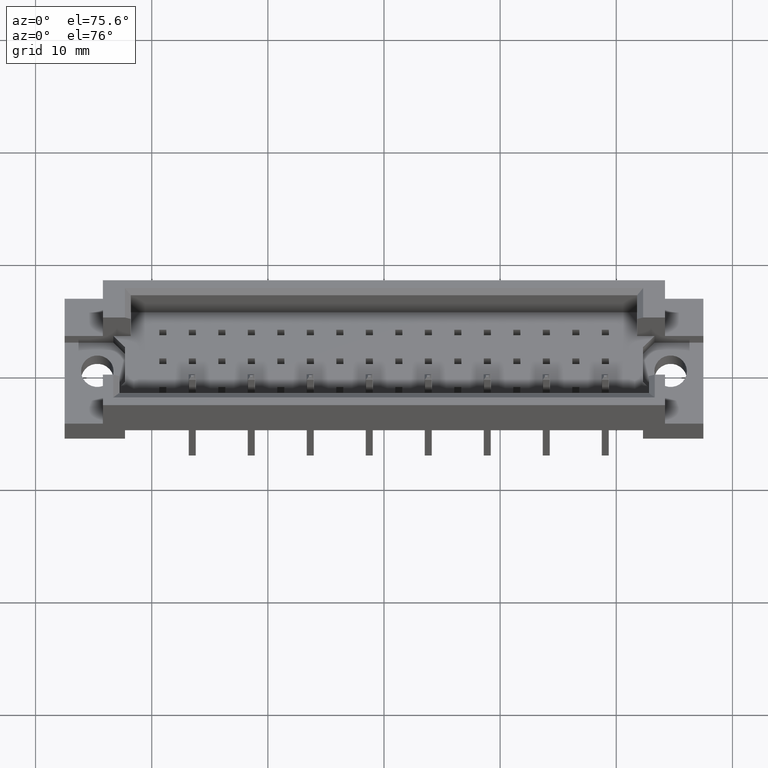
[diagram: clean part render]
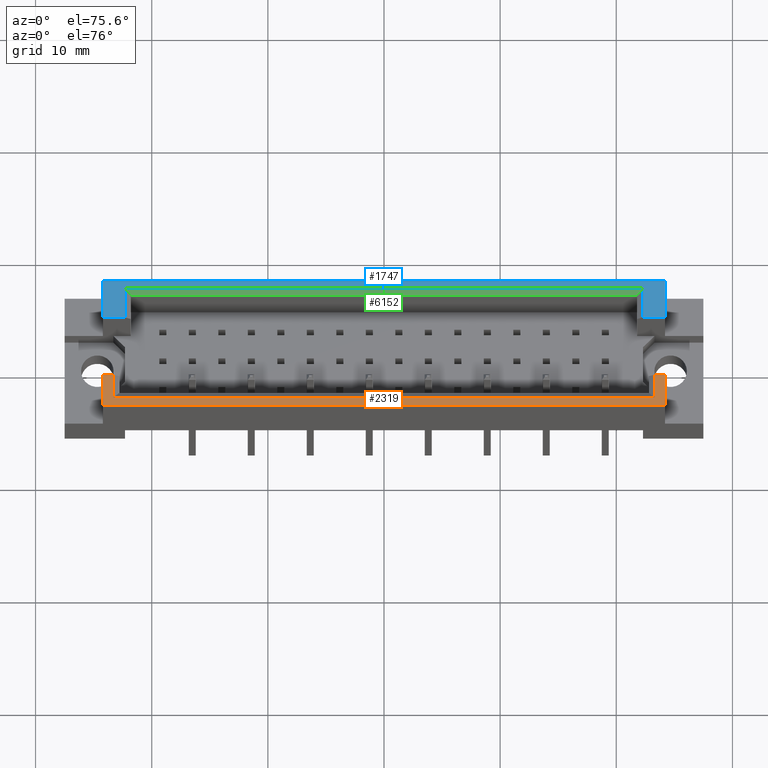
[diagram: same view with three faces highlighted in distinct colors, each labeled with its STEP entity id]
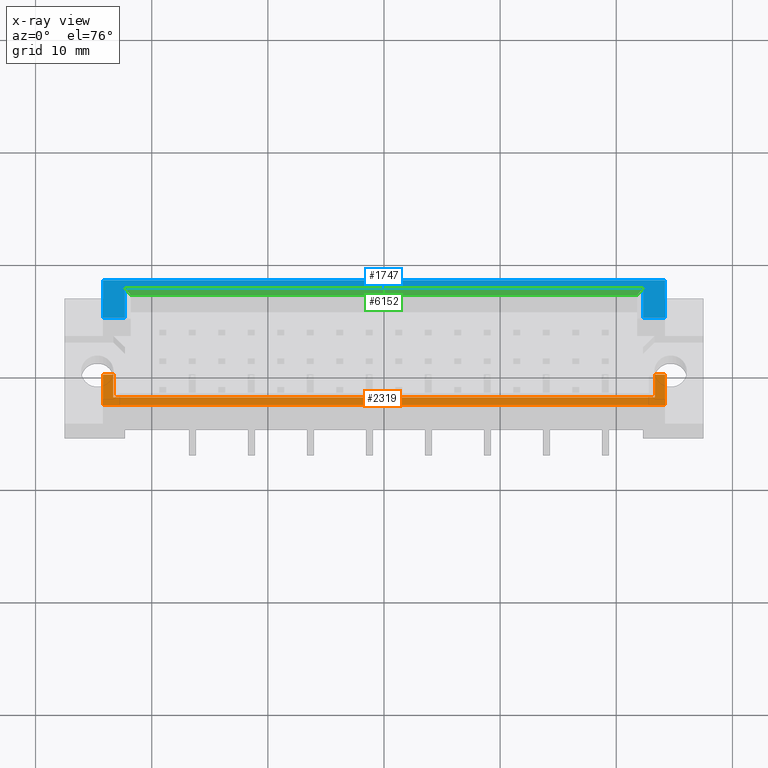
[diagram: x-ray of the same camera — body ghosted, the three highlighted faces saturated]
A machine part, auxiliary view with three faces highlighted in distinct colors.
The next image is the same camera in x-ray (body ghosted, the three faces saturated) — at least one of them is partly hidden behind the body in this view.
Their STEP definitions:

[orange] entity #2319 — the highlighted planar face has unit normal (-0, 0, -1).
#160 = ORIENTED_EDGE ( 'NONE', *, *, #1022, .T. ) ;
#699 = LINE ( 'NONE', #1401, #6048 ) ;
#718 = DIRECTION ( 'NONE',  ( 0.0000000000000000000, 1.000000000000000000, 0.0000000000000000000 ) ) ;
#722 = EDGE_CURVE ( 'NONE', #6373, #8333, #1933, .T. ) ;
#878 = EDGE_CURVE ( 'NONE', #7812, #8339, #2066, .T. ) ;
#960 = LINE ( 'NONE', #5345, #5427 ) ;
#1022 = EDGE_CURVE ( 'NONE', #7812, #2282, #2492, .T. ) ;
#1046 = ORIENTED_EDGE ( 'NONE', *, *, #722, .T. ) ;
#1201 = VERTEX_POINT ( 'NONE', #3562 ) ;
#1330 = CARTESIAN_POINT ( 'NONE',  ( -22.79999999999999716, 0.6919999999999928431, 11.59999999999999964 ) ) ;
#1371 = DIRECTION ( 'NONE',  ( -1.000000000000000000, 0.0000000000000000000, 1.261617073437677999E-16 ) ) ;
#1401 = CARTESIAN_POINT ( 'NONE',  ( 23.30799999999999628, 1.199999999999994404, 11.59999999999999254 ) ) ;
#1769 = CARTESIAN_POINT ( 'NONE',  ( 23.30799999999999628, 0.6919999999999928431, 11.59999999999999254 ) ) ;
#1933 = LINE ( 'NONE', #3136, #5678 ) ;
#2066 = LINE ( 'NONE', #7775, #8694 ) ;
#2282 = VERTEX_POINT ( 'NONE', #3869 ) ;
#2319 = ADVANCED_FACE ( 'NONE', ( #3828 ), #5364, .F. ) ;
#2492 = LINE ( 'NONE', #6024, #4634 ) ;
#2504 = LINE ( 'NONE', #7425, #4395 ) ;
#2820 = CARTESIAN_POINT ( 'NONE',  ( -23.30799999999999983, 0.6919999999999928431, 11.59999999999999964 ) ) ;
#2953 = DIRECTION ( 'NONE',  ( 0.0000000000000000000, -1.000000000000000000, 0.0000000000000000000 ) ) ;
#3136 = CARTESIAN_POINT ( 'NONE',  ( 22.79999999999999716, 2.709999999999995524, 11.59999999999999609 ) ) ;
#3254 = VERTEX_POINT ( 'NONE', #2820 ) ;
#3307 = CARTESIAN_POINT ( 'NONE',  ( -24.19999999999999929, 0.0000000000000000000, 11.59999999999999609 ) ) ;
#3562 = CARTESIAN_POINT ( 'NONE',  ( -23.30799999999999983, 2.709999999999995524, 11.59999999999999609 ) ) ;
#3828 = FACE_OUTER_BOUND ( 'NONE', #4004, .T. ) ;
#3854 = ORIENTED_EDGE ( 'NONE', *, *, #5242, .T. ) ;
#3869 = CARTESIAN_POINT ( 'NONE',  ( 24.19999999999999929, 0.0000000000000000000, 11.59999999999999609 ) ) ;
#3914 = DIRECTION ( 'NONE',  ( -1.000000000000000000, 0.0000000000000000000, 1.261617073437677999E-16 ) ) ;
#4004 = EDGE_LOOP ( 'NONE', ( #8440, #3854, #7537, #7295, #160, #4507, #1046, #4942 ) ) ;
#4395 = VECTOR ( 'NONE', #7600, 1000.000000000000000 ) ;
#4474 = EDGE_CURVE ( 'NONE', #9064, #3254, #9093, .T. ) ;
#4507 = ORIENTED_EDGE ( 'NONE', *, *, #7609, .F. ) ;
#4542 = VECTOR ( 'NONE', #1371, 1000.000000000000000 ) ;
#4634 = VECTOR ( 'NONE', #9026, 1000.000000000000000 ) ;
#4942 = ORIENTED_EDGE ( 'NONE', *, *, #6696, .T. ) ;
#5042 = CARTESIAN_POINT ( 'NONE',  ( 24.19999999999999929, 0.0000000000000000000, 11.59999999999999609 ) ) ;
#5242 = EDGE_CURVE ( 'NONE', #3254, #1201, #960, .T. ) ;
#5293 = VECTOR ( 'NONE', #7925, 1000.000000000000000 ) ;
#5345 = CARTESIAN_POINT ( 'NONE',  ( -23.30799999999999983, 2.709999999999995524, 11.59999999999999964 ) ) ;
#5364 = PLANE ( 'NONE',  #8443 ) ;
#5396 = CARTESIAN_POINT ( 'NONE',  ( -24.19999999999999929, 2.709999999999995524, 11.59999999999999609 ) ) ;
#5427 = VECTOR ( 'NONE', #6695, 1000.000000000000000 ) ;
#5593 = CARTESIAN_POINT ( 'NONE',  ( 23.30799999999999628, 2.709999999999995524, 11.59999999999999609 ) ) ;
#5678 = VECTOR ( 'NONE', #5911, 1000.000000000000000 ) ;
#5911 = DIRECTION ( 'NONE',  ( -1.000000000000000000, -0.0000000000000000000, -0.0000000000000000000 ) ) ;
#6024 = CARTESIAN_POINT ( 'NONE',  ( -27.49999999999999645, 0.0000000000000000000, 11.59999999999999964 ) ) ;
#6048 = VECTOR ( 'NONE', #2953, 1000.000000000000000 ) ;
#6373 = VERTEX_POINT ( 'NONE', #6594 ) ;
#6594 = CARTESIAN_POINT ( 'NONE',  ( 24.19999999999999929, 2.709999999999995524, 11.59999999999999609 ) ) ;
#6695 = DIRECTION ( 'NONE',  ( 0.0000000000000000000, 1.000000000000000000, 0.0000000000000000000 ) ) ;
#6696 = EDGE_CURVE ( 'NONE', #8333, #9064, #699, .T. ) ;
#6715 = CARTESIAN_POINT ( 'NONE',  ( -27.49999999999999645, 11.09999999999999964, 11.59999999999999964 ) ) ;
#7295 = ORIENTED_EDGE ( 'NONE', *, *, #878, .F. ) ;
#7425 = CARTESIAN_POINT ( 'NONE',  ( -24.19999999999999929, 2.709999999999995524, 11.59999999999999609 ) ) ;
#7537 = ORIENTED_EDGE ( 'NONE', *, *, #7660, .T. ) ;
#7600 = DIRECTION ( 'NONE',  ( -1.000000000000000000, -0.0000000000000000000, -0.0000000000000000000 ) ) ;
#7609 = EDGE_CURVE ( 'NONE', #6373, #2282, #8635, .T. ) ;
#7660 = EDGE_CURVE ( 'NONE', #1201, #8339, #2504, .T. ) ;
#7775 = CARTESIAN_POINT ( 'NONE',  ( -24.19999999999999929, 0.0000000000000000000, 11.59999999999999609 ) ) ;
#7812 = VERTEX_POINT ( 'NONE', #3307 ) ;
#7925 = DIRECTION ( 'NONE',  ( -0.0000000000000000000, -1.000000000000000000, -0.0000000000000000000 ) ) ;
#8253 = DIRECTION ( 'NONE',  ( -1.261617073437677999E-16, 0.0000000000000000000, -1.000000000000000000 ) ) ;
#8333 = VERTEX_POINT ( 'NONE', #5593 ) ;
#8339 = VERTEX_POINT ( 'NONE', #5396 ) ;
#8440 = ORIENTED_EDGE ( 'NONE', *, *, #4474, .T. ) ;
#8443 = AXIS2_PLACEMENT_3D ( 'NONE', #6715, #8253, #3914 ) ;
#8635 = LINE ( 'NONE', #5042, #5293 ) ;
#8694 = VECTOR ( 'NONE', #718, 1000.000000000000000 ) ;
#9026 = DIRECTION ( 'NONE',  ( 1.000000000000000000, 0.0000000000000000000, -1.261617073437677999E-16 ) ) ;
#9064 = VERTEX_POINT ( 'NONE', #1769 ) ;
#9093 = LINE ( 'NONE', #1330, #4542 ) ;

[blue] entity #1747 — the highlighted planar face has unit normal (-0, 0, -1).
#299 = LINE ( 'NONE', #4473, #5766 ) ;
#638 = VECTOR ( 'NONE', #1280, 1000.000000000000000 ) ;
#747 = CARTESIAN_POINT ( 'NONE',  ( -22.30800000000000338, 7.789999999999995595, 11.59999999999999609 ) ) ;
#900 = CARTESIAN_POINT ( 'NONE',  ( 24.19999999999999929, 7.789999999999995595, 11.59999999999999609 ) ) ;
#953 = LINE ( 'NONE', #900, #3573 ) ;
#967 = AXIS2_PLACEMENT_3D ( 'NONE', #3656, #6577, #2946 ) ;
#997 = CARTESIAN_POINT ( 'NONE',  ( 22.30800000000000693, 10.40800000000000303, 11.59999999999999254 ) ) ;
#1028 = ORIENTED_EDGE ( 'NONE', *, *, #1907, .T. ) ;
#1029 = CARTESIAN_POINT ( 'NONE',  ( 21.79999999999999716, 10.40800000000000303, 11.59999999999999254 ) ) ;
#1059 = EDGE_CURVE ( 'NONE', #6664, #4493, #4035, .T. ) ;
#1133 = EDGE_LOOP ( 'NONE', ( #1028, #2922, #5361, #6099, #4154, #2263, #3383, #1294 ) ) ;
#1229 = LINE ( 'NONE', #5592, #638 ) ;
#1280 = DIRECTION ( 'NONE',  ( 0.0000000000000000000, -1.000000000000000000, 0.0000000000000000000 ) ) ;
#1294 = ORIENTED_EDGE ( 'NONE', *, *, #1059, .T. ) ;
#1297 = VERTEX_POINT ( 'NONE', #3058 ) ;
#1315 = EDGE_CURVE ( 'NONE', #6639, #4320, #953, .T. ) ;
#1747 = ADVANCED_FACE ( 'NONE', ( #3744 ), #3598, .F. ) ;
#1907 = EDGE_CURVE ( 'NONE', #4493, #6822, #8130, .T. ) ;
#2253 = VERTEX_POINT ( 'NONE', #2374 ) ;
#2263 = ORIENTED_EDGE ( 'NONE', *, *, #7920, .F. ) ;
#2374 = CARTESIAN_POINT ( 'NONE',  ( -24.19999999999999929, 11.09999999999999787, 11.59999999999999609 ) ) ;
#2533 = DIRECTION ( 'NONE',  ( 1.000000000000000000, 0.0000000000000000000, 0.0000000000000000000 ) ) ;
#2581 = DIRECTION ( 'NONE',  ( 0.0000000000000000000, 1.000000000000000000, 0.0000000000000000000 ) ) ;
#2587 = EDGE_CURVE ( 'NONE', #1297, #4320, #3488, .T. ) ;
#2922 = ORIENTED_EDGE ( 'NONE', *, *, #4888, .T. ) ;
#2946 = DIRECTION ( 'NONE',  ( -1.000000000000000000, 0.0000000000000000000, 1.261617073437677999E-16 ) ) ;
#3058 = CARTESIAN_POINT ( 'NONE',  ( 24.19999999999999929, 11.09999999999999787, 11.59999999999999609 ) ) ;
#3226 = DIRECTION ( 'NONE',  ( 1.000000000000000000, 0.0000000000000000000, -1.261617073437677999E-16 ) ) ;
#3383 = ORIENTED_EDGE ( 'NONE', *, *, #3499, .T. ) ;
#3488 = LINE ( 'NONE', #5924, #5051 ) ;
#3499 = EDGE_CURVE ( 'NONE', #6172, #6664, #299, .T. ) ;
#3557 = LINE ( 'NONE', #7897, #3632 ) ;
#3573 = VECTOR ( 'NONE', #5016, 1000.000000000000000 ) ;
#3598 = PLANE ( 'NONE',  #967 ) ;
#3632 = VECTOR ( 'NONE', #7188, 1000.000000000000000 ) ;
#3656 = CARTESIAN_POINT ( 'NONE',  ( -27.49999999999999645, 11.09999999999999964, 11.59999999999999964 ) ) ;
#3744 = FACE_OUTER_BOUND ( 'NONE', #1133, .T. ) ;
#3916 = CARTESIAN_POINT ( 'NONE',  ( 24.19999999999999929, 7.789999999999995595, 11.59999999999999609 ) ) ;
#4035 = LINE ( 'NONE', #6923, #6432 ) ;
#4154 = ORIENTED_EDGE ( 'NONE', *, *, #6708, .F. ) ;
#4320 = VERTEX_POINT ( 'NONE', #3916 ) ;
#4473 = CARTESIAN_POINT ( 'NONE',  ( -24.19999999999999929, 7.789999999999995595, 11.59999999999999609 ) ) ;
#4493 = VERTEX_POINT ( 'NONE', #5644 ) ;
#4888 = EDGE_CURVE ( 'NONE', #6822, #6639, #1229, .T. ) ;
#5016 = DIRECTION ( 'NONE',  ( 1.000000000000000000, -0.0000000000000000000, -0.0000000000000000000 ) ) ;
#5051 = VECTOR ( 'NONE', #6407, 1000.000000000000000 ) ;
#5058 = CARTESIAN_POINT ( 'NONE',  ( 22.30800000000000693, 7.789999999999995595, 11.59999999999999609 ) ) ;
#5083 = LINE ( 'NONE', #6605, #6191 ) ;
#5361 = ORIENTED_EDGE ( 'NONE', *, *, #1315, .T. ) ;
#5592 = CARTESIAN_POINT ( 'NONE',  ( 22.30800000000000693, 7.789999999999995595, 11.59999999999999254 ) ) ;
#5644 = CARTESIAN_POINT ( 'NONE',  ( -22.30800000000000338, 10.40800000000000303, 11.59999999999999964 ) ) ;
#5766 = VECTOR ( 'NONE', #2533, 1000.000000000000000 ) ;
#5924 = CARTESIAN_POINT ( 'NONE',  ( 24.19999999999999929, 0.0000000000000000000, 11.59999999999999609 ) ) ;
#6099 = ORIENTED_EDGE ( 'NONE', *, *, #2587, .F. ) ;
#6172 = VERTEX_POINT ( 'NONE', #7809 ) ;
#6191 = VECTOR ( 'NONE', #8715, 1000.000000000000000 ) ;
#6407 = DIRECTION ( 'NONE',  ( -0.0000000000000000000, -1.000000000000000000, -0.0000000000000000000 ) ) ;
#6432 = VECTOR ( 'NONE', #2581, 1000.000000000000000 ) ;
#6577 = DIRECTION ( 'NONE',  ( -1.261617073437677999E-16, 0.0000000000000000000, -1.000000000000000000 ) ) ;
#6605 = CARTESIAN_POINT ( 'NONE',  ( -24.19999999999999929, 0.0000000000000000000, 11.59999999999999609 ) ) ;
#6639 = VERTEX_POINT ( 'NONE', #5058 ) ;
#6664 = VERTEX_POINT ( 'NONE', #747 ) ;
#6708 = EDGE_CURVE ( 'NONE', #2253, #1297, #3557, .T. ) ;
#6822 = VERTEX_POINT ( 'NONE', #997 ) ;
#6923 = CARTESIAN_POINT ( 'NONE',  ( -22.30800000000000338, 9.899999999999993250, 11.59999999999999964 ) ) ;
#7188 = DIRECTION ( 'NONE',  ( 1.000000000000000000, 0.0000000000000000000, -1.261617073437677999E-16 ) ) ;
#7392 = VECTOR ( 'NONE', #3226, 1000.000000000000000 ) ;
#7809 = CARTESIAN_POINT ( 'NONE',  ( -24.19999999999999929, 7.789999999999995595, 11.59999999999999609 ) ) ;
#7897 = CARTESIAN_POINT ( 'NONE',  ( -27.49999999999999645, 11.09999999999999964, 11.59999999999999964 ) ) ;
#7920 = EDGE_CURVE ( 'NONE', #6172, #2253, #5083, .T. ) ;
#8130 = LINE ( 'NONE', #1029, #7392 ) ;
#8715 = DIRECTION ( 'NONE',  ( 0.0000000000000000000, 1.000000000000000000, 0.0000000000000000000 ) ) ;

[green] entity #6152 — the highlighted planar face has unit normal (0, -0.7071, 0.7071).
#155 = DIRECTION ( 'NONE',  ( 0.5773502691896260641, -0.5773502691896251759, -0.5773502691896260641 ) ) ;
#413 = VERTEX_POINT ( 'NONE', #4063 ) ;
#597 = EDGE_CURVE ( 'NONE', #6822, #413, #7979, .T. ) ;
#933 = EDGE_CURVE ( 'NONE', #4493, #6885, #1610, .T. ) ;
#997 = CARTESIAN_POINT ( 'NONE',  ( 22.30800000000000693, 10.40800000000000303, 11.59999999999999254 ) ) ;
#1029 = CARTESIAN_POINT ( 'NONE',  ( 21.79999999999999716, 10.40800000000000303, 11.59999999999999254 ) ) ;
#1272 = EDGE_LOOP ( 'NONE', ( #3220, #1942, #7827, #8782 ) ) ;
#1588 = DIRECTION ( 'NONE',  ( -0.5773502691896286176, -0.5773502691896238437, -0.5773502691896246208 ) ) ;
#1610 = LINE ( 'NONE', #5079, #1782 ) ;
#1782 = VECTOR ( 'NONE', #155, 1000.000000000000000 ) ;
#1820 = AXIS2_PLACEMENT_3D ( 'NONE', #6359, #6981, #4172 ) ;
#1907 = EDGE_CURVE ( 'NONE', #4493, #6822, #8130, .T. ) ;
#1942 = ORIENTED_EDGE ( 'NONE', *, *, #6579, .F. ) ;
#3220 = ORIENTED_EDGE ( 'NONE', *, *, #933, .T. ) ;
#3226 = DIRECTION ( 'NONE',  ( 1.000000000000000000, 0.0000000000000000000, -1.261617073437677999E-16 ) ) ;
#3470 = CARTESIAN_POINT ( 'NONE',  ( -21.79999999999999716, 9.899999999999993250, 11.09199999999999164 ) ) ;
#4063 = CARTESIAN_POINT ( 'NONE',  ( 21.79999999999999716, 9.899999999999993250, 11.09199999999998454 ) ) ;
#4172 = DIRECTION ( 'NONE',  ( 0.0000000000000000000, -0.7071067811865470176, -0.7071067811865480168 ) ) ;
#4338 = VECTOR ( 'NONE', #1588, 1000.000000000000227 ) ;
#4493 = VERTEX_POINT ( 'NONE', #5644 ) ;
#5079 = CARTESIAN_POINT ( 'NONE',  ( -24.03866666666667129, 12.13866666666666561, 13.33066666666666400 ) ) ;
#5644 = CARTESIAN_POINT ( 'NONE',  ( -22.30800000000000338, 10.40800000000000303, 11.59999999999999964 ) ) ;
#6152 = ADVANCED_FACE ( 'NONE', ( #9167 ), #6306, .T. ) ;
#6306 = PLANE ( 'NONE',  #1820 ) ;
#6344 = LINE ( 'NONE', #8371, #8888 ) ;
#6359 = CARTESIAN_POINT ( 'NONE',  ( -27.49999999999999645, 10.40800000000000303, 11.59999999999999964 ) ) ;
#6579 = EDGE_CURVE ( 'NONE', #413, #6885, #6344, .T. ) ;
#6822 = VERTEX_POINT ( 'NONE', #997 ) ;
#6885 = VERTEX_POINT ( 'NONE', #3470 ) ;
#6981 = DIRECTION ( 'NONE',  ( 8.920979878885079395E-17, -0.7071067811865480168, 0.7071067811865470176 ) ) ;
#7392 = VECTOR ( 'NONE', #3226, 1000.000000000000000 ) ;
#7827 = ORIENTED_EDGE ( 'NONE', *, *, #597, .F. ) ;
#7890 = CARTESIAN_POINT ( 'NONE',  ( 22.53866666666667484, 10.63866666666666561, 11.83066666666665689 ) ) ;
#7979 = LINE ( 'NONE', #7890, #4338 ) ;
#8130 = LINE ( 'NONE', #1029, #7392 ) ;
#8371 = CARTESIAN_POINT ( 'NONE',  ( -21.79999999999999716, 9.899999999999993250, 11.09199999999998987 ) ) ;
#8782 = ORIENTED_EDGE ( 'NONE', *, *, #1907, .F. ) ;
#8888 = VECTOR ( 'NONE', #9020, 1000.000000000000000 ) ;
#9020 = DIRECTION ( 'NONE',  ( -1.000000000000000000, 0.0000000000000000000, 1.261617073437677999E-16 ) ) ;
#9167 = FACE_OUTER_BOUND ( 'NONE', #1272, .T. ) ;